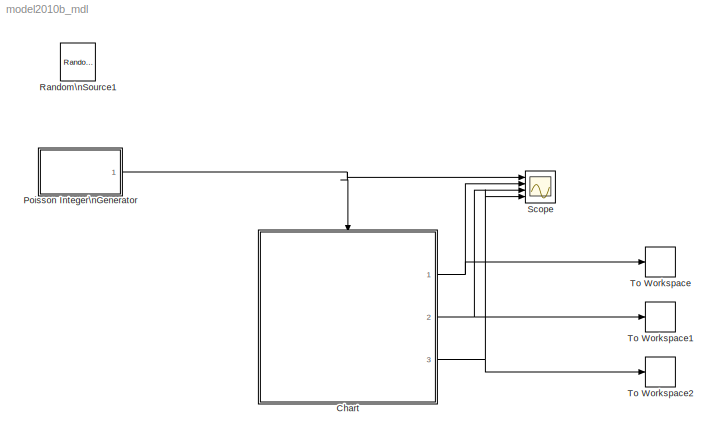
MODEL model2010b_mdl
KIND model
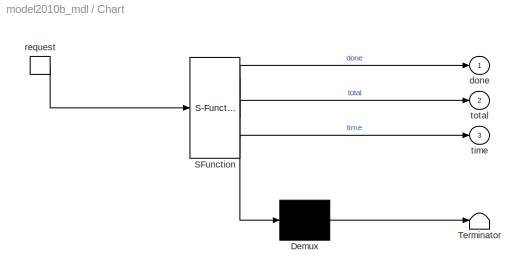
BLOCK [SubSystem] Chart
  FunctionWithSeparateData = off
  MaskDescription = Stateflow diagram
  MaskDisplay = plot(sf('Private','sfblk','xIcon'),sf('Private','sfblk','yIcon'));text(0.5,0,sf('Private', 'sfblk', 'tIcon'),'HorizontalAl','Center','VerticalAl','Bottom');
  MaskHideContents = off
  MaskIconFrame = off
  MaskIconOpaque = off
  MaskIconRotate = none
  MaskIconUnits = normalized
  MaskPortRotate = default
  MaskSelfModifiable = on
  MaskType = Stateflow
  MinAlgLoopOccurrences = off
  Opaque = off
  PermitHierarchicalResolution = ParametersOnly
  Ports = [0, 3, 0, 1]
  PropExecContextOutsideSubsystem = off
  RTWSystemCode = Auto
  RequestExecContextInheritance = off
  SID = 1
  TreatAsAtomicUnit = on
  Variant = off
BLOCK [Demux] Chart/ Demux 
  Outputs = 1
  Ports = [1, 1]
  SID = 1::95
BLOCK [S-Function] Chart/ SFunction 
  EnableBusSupport = on
  FunctionName = sf_sfun
  PortCounts = [1 4]
  Ports = [1, 4]
  SFunctionDeploymentMode = off
  SID = 1::94
  Tag = Stateflow S-Function model2010b_mdl 3
BLOCK [Terminator] Chart/ Terminator 
  SID = 1::96
BLOCK [Outport] Chart/done
  IconDisplay = Port number
  SID = 1::91
BLOCK [TriggerPort] Chart/request
  Ports = [0, 1]
  SID = 1::90
  ShowOutputPort = on
  StatesWhenEnabling = held
BLOCK [Outport] Chart/time
  IconDisplay = Port number
  Port = 3
  SID = 1::92
BLOCK [Outport] Chart/total
  IconDisplay = Port number
  Port = 2
  SID = 1::93
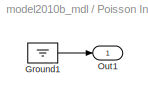
BLOCK [SubSystem] Poisson Integer\nGenerator
  Description = Replaced Block
  MaskDescription = This block has been replaced with an empty subsystem because it used functionality that is unavailable in Simulink R2010b.
  MaskDisplay = fprintf('Replaced: %s\\n','MATLABSystem')
  MaskIconFrame = on
  MaskIconOpaque = on
  MaskIconRotate = none
  MaskIconUnits = autoscale
  MaskPortRotate = default
  MaskType = Replaced Block
  Ports = [0, 1]
  RequestExecContextInheritance = off
  SID = 14
  Variant = off
BLOCK [Ground] Poisson Integer\nGenerator/Ground1
  SID = 15
BLOCK [Outport] Poisson Integer\nGenerator/Out1
  IconDisplay = Port number
  SID = 16
BLOCK [Reference] Random\nSource1  REF=dspsrcs4/Random\nSource
  CltLength = 12
  DataType = Single
  IsInherit = off
  MaxVal = 1
  MeanVal = Li
  MinVal = 0
  NormMethod = Sum of uniform values
  OutComplex = Real
  Ports = [0, 1]
  RepMode = Repeatable
  SID = 12
  SampFrame = 1
  SampMode = Discrete
  SampTime = Ts
  SourceBlock = dspsrcs4/Random\nSource
  SourceType = Random Source
  SrcType = Gaussian
  UserData = DataTag0
  UserDataPersistent = on
  VarVal = 1
  rawSeed = 1
BLOCK [Scope] Scope
  DataFormat = StructureWithTime
  Decimation = 1
  Grid = on
  LimitDataPoints = off
  MaxDataPoints = 5000
  NumInputPorts = 4
  Ports = [4]
  SID = 2
  SampleInput = off
  SampleTime = -1
  SaveName = ScopeData
  SaveToWorkspace = off
  TickLabels = OneTimeTick
  TimeRange = auto
  YMax = 4.78891~106.875~808.875~10244.25
  YMin = -4.47408~-11.875~-89.875~-1138.25
  ZoomMode = on
BLOCK [ToWorkspace] To Workspace
  FixptAsFi = on
  MaxDataPoints = inf
  Ports = [1]
  SID = 3
  SampleTime = Ts
  VariableName = done
BLOCK [ToWorkspace] To Workspace1
  FixptAsFi = on
  MaxDataPoints = inf
  Ports = [1]
  SID = 4
  SampleTime = Ts
  VariableName = total
BLOCK [ToWorkspace] To Workspace2
  FixptAsFi = on
  MaxDataPoints = inf
  Ports = [1]
  SID = 5
  SampleTime = Ts
  VariableName = time
LINE Chart/ Demux :1 -> Chart/ Terminator :1
LINE Chart/ SFunction :1 -> Chart/ Demux :1
LINE Chart/ SFunction :2 -> Chart/done:1
LINE Chart/ SFunction :3 -> Chart/total:1
LINE Chart/ SFunction :4 -> Chart/time:1
LINE Chart/request:1 -> Chart/ SFunction :1
NET Chart:1 -> Scope:2, To Workspace:1
NET Chart:2 -> Scope:3, To Workspace1:1
NET Chart:3 -> Scope:4, To Workspace2:1
LINE Poisson Integer\nGenerator/Ground1:1 -> Poisson Integer\nGenerator/Out1:1
NET Poisson Integer\nGenerator:1 -> Chart:trigger, Scope:1
note: NET lines group one-source signal fan-out (src -> all destinations, sorted); 1:1 wires keep LINE
CHART Chart states=18 transitions=31
  STATE_LABEL 'Q1'
  STATE_LABEL 'Q2'
  STATE_LABEL 'Active'
  STATE_LABEL 'ProcessQ1'
  STATE_LABEL 'free/'
  STATE_LABEL "busy/\\nentry:bt1=ml('prand(1/Lo)');\\nto1=t;\\nduring: time++;\\nexit: done++;"
  STATE_LABEL 'QueueQ1'
  STATE_LABEL 'empty/'
  STATE_LABEL 'stored/\\non setrequest: nq1++;\\non getrequest: nq1--;\\nduring:time=time+nq1;'
  STATE_LABEL 'full/\\nduring:time=time+nq1;'
  STATE_LABEL 'free/'
  STATE_LABEL 'ProcessQ2'
  STATE_LABEL 'QueueQ2'
  STATE_LABEL "busy/\\nentry:bt2=ml('prand(1/Lo)');\\nto2=t;\\nduring: time++;\\nexit: done++;\\n"
  STATE_LABEL 'full/\\nduring:time=time+nq2;'
  STATE_LABEL 'stored/\\non setrequest: nq2++;\\non getrequest: nq2--;\\nduring:time=time+nq2;'
  STATE_LABEL 'empty/'
  STATE_LABEL 'main/'
